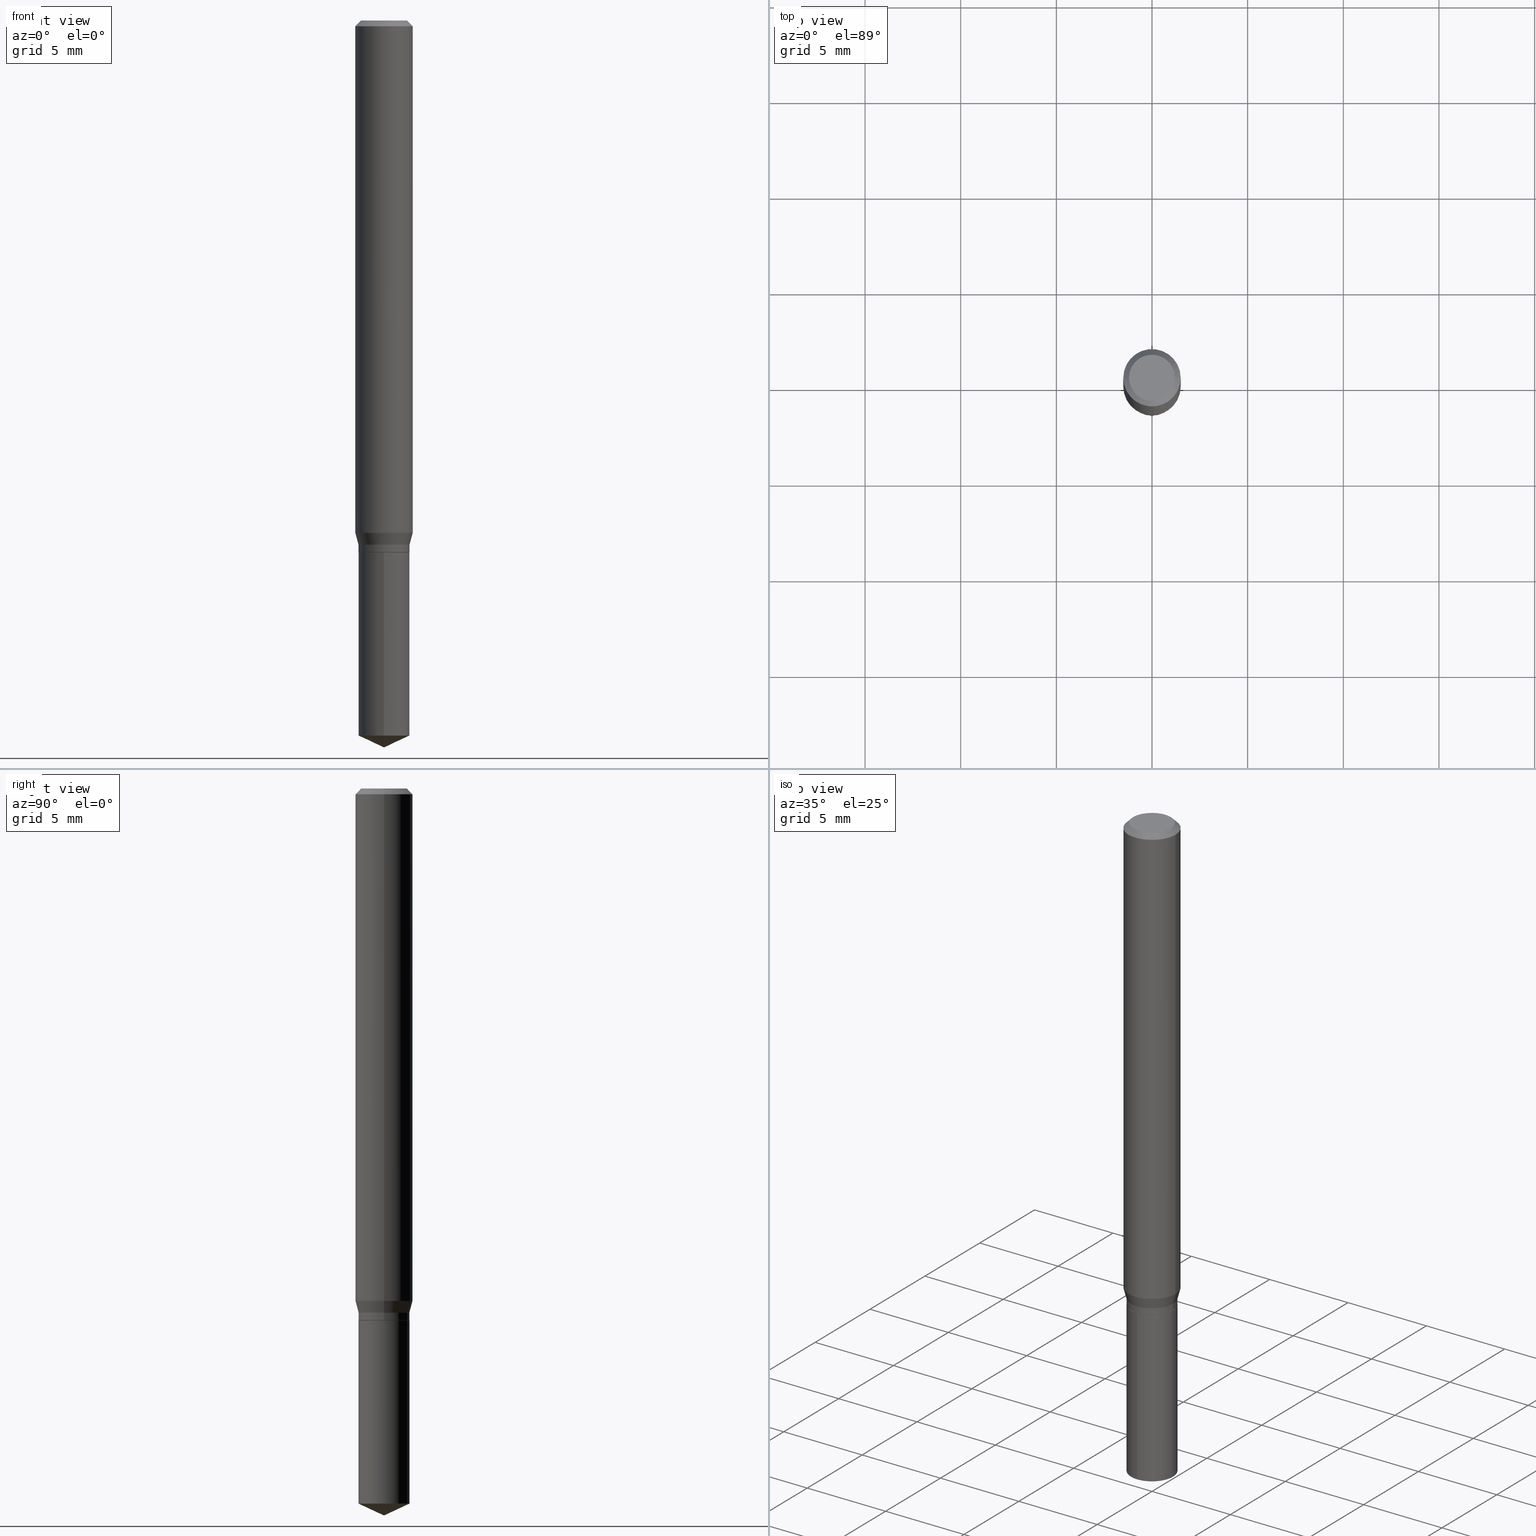
[diagram: canonical four-view strip — front | top / right | iso, engineering-drawing reading convention]
A machine part, canonical four-view strip (front | top / right | iso — engineering-drawing reading convention). The complete STEP part file that produces these views, byte-faithful:
ISO-10303-21;
HEADER;
FILE_DESCRIPTION (( 'STEP AP203' ),
    '1' );
FILE_NAME ('07681.STEP',
    '2024-04-24T00:56:24',
    ( '' ),
    ( '' ),
    'SwSTEP 2.0',
    'SolidWorks 2023',
    '' );
FILE_SCHEMA (( 'CONFIG_CONTROL_DESIGN' ));
ENDSEC;

DATA;
#1 = ORIENTED_EDGE ( 'NONE', *, *, #370, .F. ) ;
#2 = ORIENTED_EDGE ( 'NONE', *, *, #201, .F. ) ;
#3 = CARTESIAN_POINT ( 'NONE',  ( -0.05204999999999999211, -3.448939604226579531E-15, -1.094499999999999806 ) ) ;
#4 = CARTESIAN_POINT ( 'NONE',  ( 3.658651059288795076E-29, -5.223626456482161457E-15, -1.496099999999999985 ) ) ;
#5 = VECTOR ( 'NONE', #38, 39.37007874015748143 ) ;
#6 = CARTESIAN_POINT ( 'NONE',  ( 4.132873053354867254E-48, -5.900647395337818946E-34, -1.690012582823346072E-19 ) ) ;
#7 = EDGE_CURVE ( 'NONE', #419, #51, #10, .T. ) ;
#8 = CARTESIAN_POINT ( 'NONE',  ( 2.578604211317355052E-29, -3.681563412833531563E-15, -1.054441669750801669 ) ) ;
#9 = DIRECTION ( 'NONE',  ( 1.000000000000000000, -6.982962677686265133E-15, 0.000000000000000000 ) ) ;
#10 = CIRCLE ( 'NONE', #274, 0.05254999999999999949 ) ;
#11 = ORIENTED_EDGE ( 'NONE', *, *, #358, .F. ) ;
#12 = CALENDAR_DATE ( 2024, 23, 4 ) ;
#13 = ORIENTED_EDGE ( 'NONE', *, *, #7, .F. ) ;
#14 = EDGE_CURVE ( 'NONE', #115, #48, #64, .T. ) ;
#15 = DIRECTION ( 'NONE',  ( -2.445458899330790108E-29, 3.491495526022433599E-15, 1.000000000000000000 ) ) ;
#16 = ORIENTED_EDGE ( 'NONE', *, *, #457, .T. ) ;
#17 = LOCAL_TIME ( 20, 56, 24.00000000000000000, #248 ) ;
#18 = ORIENTED_EDGE ( 'NONE', *, *, #93, .F. ) ;
#19 = COORDINATED_UNIVERSAL_TIME_OFFSET ( 5, 0, .BEHIND. ) ;
#20 = ORIENTED_EDGE ( 'NONE', *, *, #300, .F. ) ;
#21 = DIRECTION ( 'NONE',  ( -2.438088387897960049E-29, 3.491481338843145188E-15, 1.000000000000000000 ) ) ;
#22 = VECTOR ( 'NONE', #132, 39.37007874015748143 ) ;
#23 = CARTESIAN_POINT ( 'NONE',  ( 0.04724000000000000421, -3.852183633974369345E-16, -3.380025165621689721E-19 ) ) ;
#24 = APPROVAL_STATUS ( 'not_yet_approved' ) ;
#25 = EDGE_CURVE ( 'NONE', #238, #123, #415, .T. ) ;
#26 = CARTESIAN_POINT ( 'NONE',  ( 2.676565608369631234E-29, -3.821426325363821984E-15, -1.094499999999999806 ) ) ;
#27 = PLANE ( 'NONE',  #37 ) ;
#28 = PERSON_AND_ORGANIZATION ( #50, #137 ) ;
#29 = CARTESIAN_POINT ( 'NONE',  ( 2.676565608369631794E-29, -3.821426325363822773E-15, -1.094499999999999806 ) ) ;
#30 = DIRECTION ( 'NONE',  ( -6.982962677686265922E-15, -1.000000000000000000, 2.599284484932695853E-15 ) ) ;
#31 = AXIS2_PLACEMENT_3D ( 'NONE', #29, #363, #30 ) ;
#32 = CC_DESIGN_DATE_AND_TIME_ASSIGNMENT ( #295, #257, ( #39 ) ) ;
#33 = CARTESIAN_POINT ( 'NONE',  ( -0.05905000000000006771, 4.195754854663396409E-16, -2.904631170795525045E-30 ) ) ;
#34 = DIRECTION ( 'NONE',  ( -6.982962677686267499E-15, -1.000000000000000000, 3.520397390770462942E-15 ) ) ;
#35 = ORIENTED_EDGE ( 'NONE', *, *, #234, .F. ) ;
#36 = DIRECTION ( 'NONE',  ( -2.445468806185136597E-29, 3.491481338843145583E-15, 1.000000000000000000 ) ) ;
#37 = AXIS2_PLACEMENT_3D ( 'NONE', #445, #21, #403 ) ;
#38 = DIRECTION ( 'NONE',  ( -2.445468806185136877E-29, 3.491481338843145188E-15, 1.000000000000000000 ) ) ;
#39 = SECURITY_CLASSIFICATION ( '', '', #241 ) ;
#40 = DIRECTION ( 'NONE',  ( -1.000000000000000000, 6.982962677686266711E-15, 0.000000000000000000 ) ) ;
#41 = AXIS2_PLACEMENT_3D ( 'NONE', #332, #372, #54 ) ;
#42 = CIRCLE ( 'NONE', #390, 0.05254999999999999949 ) ;
#43 = ORIENTED_EDGE ( 'NONE', *, *, #325, .T. ) ;
#44 = PRODUCT_DEFINITION_SHAPE ( 'NONE', 'NONE',  #61 ) ;
#45 = ORIENTED_EDGE ( 'NONE', *, *, #150, .T. ) ;
#46 = ORIENTED_EDGE ( 'NONE', *, *, #25, .T. ) ;
#47 = EDGE_CURVE ( 'NONE', #320, #124, #62, .T. ) ;
#48 = VERTEX_POINT ( 'NONE', #328 ) ;
#49 = LOCAL_TIME ( 20, 56, 24.00000000000000000, #134 ) ;
#50 = PERSON ( 'UNSPECIFIED', 'UNSPECIFIED', 'UNSPECIFIED', ('UNSPECIFIED'), ('UNSPECIFIED'), ('UNSPECIFIED') ) ;
#51 = VERTEX_POINT ( 'NONE', #210 ) ;
#52 = LINE ( 'NONE', #73, #387 ) ;
#53 = CALENDAR_DATE ( 2024, 23, 4 ) ;
#54 = DIRECTION ( 'NONE',  ( 1.000000000000000000, -6.982962677686265922E-15, 0.000000000000000000 ) ) ;
#55 = PERSON_AND_ORGANIZATION ( #50, #137 ) ;
#56 = ORIENTED_EDGE ( 'NONE', *, *, #228, .F. ) ;
#57 = AXIS2_PLACEMENT_3D ( 'NONE', #262, #343, #460 ) ;
#58 = DIRECTION ( 'NONE',  ( -2.445468806185136597E-29, 3.491481338843145583E-15, 1.000000000000000000 ) ) ;
#59 = ORIENTED_EDGE ( 'NONE', *, *, #474, .T. ) ;
#60 = CONICAL_SURFACE ( 'NONE', #279, 0.05204999999999999211, 0.7853981633975507526 ) ;
#61 = PRODUCT_DEFINITION ( 'UNKNOWN', '', #443, #305 ) ;
#62 = LINE ( 'NONE', #249, #426 ) ;
#63 = CARTESIAN_POINT ( 'NONE',  ( 0.000000000000000000, 0.000000000000000000, 0.000000000000000000 ) ) ;
#64 = CIRCLE ( 'NONE', #41, 0.05254999999999999949 ) ;
#65 = VECTOR ( 'NONE', #70, 39.37007874015748143 ) ;
#66 = ADVANCED_FACE ( 'NONE', ( #409 ), #413, .T. ) ;
#67 = DIRECTION ( 'NONE',  ( -2.445468806185136597E-29, 3.491481338843145583E-15, 1.000000000000000000 ) ) ;
#68 = ORIENTED_EDGE ( 'NONE', *, *, #370, .T. ) ;
#69 = CARTESIAN_POINT ( 'NONE',  ( 2.888098660104664204E-31, -4.123439461173780263E-17, -0.01181000000000007218 ) ) ;
#70 = DIRECTION ( 'NONE',  ( -2.445468806185136877E-29, 3.491481338843145188E-15, 1.000000000000000000 ) ) ;
#71 = EDGE_CURVE ( 'NONE', #123, #269, #135, .T. ) ;
#72 = DIRECTION ( 'NONE',  ( -2.445468806185136597E-29, 3.491481338843145583E-15, 1.000000000000000000 ) ) ;
#73 = CARTESIAN_POINT ( 'NONE',  ( 0.05904999999999999832, -4.463468013801466955E-16, -0.01181000000000007218 ) ) ;
#74 = CARTESIAN_POINT ( 'NONE',  ( -0.04724000000000000421, 3.504923541997677355E-16, -3.380025165670481712E-19 ) ) ;
#75 = CARTESIAN_POINT ( 'NONE',  ( -0.05254999999999999949, -3.419580544810318536E-15, -1.093999999999999861 ) ) ;
#76 = DIRECTION ( 'NONE',  ( 1.000000000000000000, -6.982962677686266711E-15, 4.876176775795935793E-29 ) ) ;
#77 =( CONVERSION_BASED_UNIT ( 'INCH', #106 ) LENGTH_UNIT ( ) NAMED_UNIT ( #448 ) );
#78 = ORIENTED_EDGE ( 'NONE', *, *, #71, .T. ) ;
#79 = CONICAL_SURFACE ( 'NONE', #315, 84.42940631927412198, 1.134464013796314896 ) ;
#80 = ORIENTED_EDGE ( 'NONE', *, *, #457, .F. ) ;
#81 = AXIS2_PLACEMENT_3D ( 'NONE', #227, #193, #307 ) ;
#82 = ORIENTED_EDGE ( 'NONE', *, *, #150, .F. ) ;
#83 = DIRECTION ( 'NONE',  ( -0.2588190451025215166, 5.211531920934551042E-15, 0.9659258262890679791 ) ) ;
#84 = EDGE_CURVE ( 'NONE', #433, #269, #125, .T. ) ;
#85 = ORIENTED_EDGE ( 'NONE', *, *, #286, .T. ) ;
#86 = VECTOR ( 'NONE', #371, 39.37007874015748143 ) ;
#87 = EDGE_LOOP ( 'NONE', ( #45, #156 ) ) ;
#88 = PERSON_AND_ORGANIZATION_ROLE ( 'design_owner' ) ;
#89 = CARTESIAN_POINT ( 'NONE',  ( 0.05904999999999999832, -4.535783407291118600E-16, -0.01181000000000007218 ) ) ;
#90 = APPROVAL_DATE_TIME ( #446, #439 ) ;
#91 = DIRECTION ( 'NONE',  ( 1.000000000000000000, -6.982962677686266711E-15, 4.876176775795935793E-29 ) ) ;
#92 = CALENDAR_DATE ( 2024, 23, 4 ) ;
#93 = EDGE_CURVE ( 'NONE', #155, #124, #450, .T. ) ;
#94 = AXIS2_PLACEMENT_3D ( 'NONE', #407, #58, #208 ) ;
#95 = CARTESIAN_POINT ( 'NONE',  ( 0.05905000000000013016, -4.093907358950906483E-15, -1.054441669750801669 ) ) ;
#96 = EDGE_LOOP ( 'NONE', ( #327, #46, #20 ) ) ;
#97 = DIRECTION ( 'NONE',  ( 6.439704144417026409E-15, 0.9063077870366517130, 0.4226182617406956665 ) ) ;
#98 = CARTESIAN_POINT ( 'NONE',  ( -9.261924752013118283E-28, 1.322368428517963298E-13, 37.87397874015748300 ) ) ;
#99 = VERTEX_POINT ( 'NONE', #23 ) ;
#100 = FACE_OUTER_BOUND ( 'NONE', #87, .T. ) ;
#101 = VECTOR ( 'NONE', #142, 39.37007874015748854 ) ;
#102 = APPROVAL_DATE_TIME ( #178, #346 ) ;
#103 = DIRECTION ( 'NONE',  ( 1.000000000000000000, -6.982962677686265133E-15, 0.000000000000000000 ) ) ;
#104 = DIRECTION ( 'NONE',  ( 1.000000000000000000, -6.982962677686266711E-15, 0.000000000000000000 ) ) ;
#105 = DIRECTION ( 'NONE',  ( 1.000000000000000000, -6.982962677686265922E-15, 0.000000000000000000 ) ) ;
#106 = LENGTH_MEASURE_WITH_UNIT ( LENGTH_MEASURE( 0.02539999999999999897 ), #230 );
#107 = ADVANCED_BREP_SHAPE_REPRESENTATION ( '07681', ( #310, #296, #355 ), #410 ) ;
#108 = PERSON_AND_ORGANIZATION ( #50, #137 ) ;
#109 = DIRECTION ( 'NONE',  ( -2.445458899330790108E-29, 3.491495526022433205E-15, 1.000000000000000000 ) ) ;
#110 = CIRCLE ( 'NONE', #459, 0.04724000000000000421 ) ;
#111 = CC_DESIGN_PERSON_AND_ORGANIZATION_ASSIGNMENT ( #401, #117, ( #39 ) ) ;
#112 = AXIS2_PLACEMENT_3D ( 'NONE', #232, #153, #308 ) ;
#113 = AXIS2_PLACEMENT_3D ( 'NONE', #344, #72, #188 ) ;
#114 = APPROVAL_STATUS ( 'not_yet_approved' ) ;
#115 = VERTEX_POINT ( 'NONE', #251 ) ;
#116 = FACE_OUTER_BOUND ( 'NONE', #482, .T. ) ;
#117 = PERSON_AND_ORGANIZATION_ROLE ( 'classification_officer' ) ;
#118 = ORIENTED_EDGE ( 'NONE', *, *, #14, .T. ) ;
#119 = PERSON_AND_ORGANIZATION_ROLE ( 'design_supplier' ) ;
#120 = AXIS2_PLACEMENT_3D ( 'NONE', #6, #254, #420 ) ;
#121 = EDGE_LOOP ( 'NONE', ( #357, #207 ) ) ;
#122 = ADVANCED_FACE ( 'NONE', ( #174 ), #335, .T. ) ;
#123 = VERTEX_POINT ( 'NONE', #276 ) ;
#124 = VERTEX_POINT ( 'NONE', #444 ) ;
#125 = CIRCLE ( 'NONE', #31, 0.05254999999999999949 ) ;
#126 = LINE ( 'NONE', #199, #397 ) ;
#127 = DIRECTION ( 'NONE',  ( 1.000000000000000000, -6.982962677686266711E-15, 4.876176775795936353E-29 ) ) ;
#128 = APPROVAL_PERSON_ORGANIZATION ( #108, #346, #424 ) ;
#129 = VERTEX_POINT ( 'NONE', #95 ) ;
#130 = CARTESIAN_POINT ( 'NONE',  ( 3.733902076419593174E-16, 0.05254999999999616922, -1.094500000000000028 ) ) ;
#131 = CIRCLE ( 'NONE', #81, 0.05254999999999999949 ) ;
#132 = DIRECTION ( 'NONE',  ( -2.445458899330790108E-29, 3.491495526022433599E-15, 1.000000000000000000 ) ) ;
#133 = AXIS2_PLACEMENT_3D ( 'NONE', #26, #247, #9 ) ;
#134 = COORDINATED_UNIVERSAL_TIME_OFFSET ( 5, 0, .BEHIND. ) ;
#135 = LINE ( 'NONE', #130, #22 ) ;
#136 = CC_DESIGN_DATE_AND_TIME_ASSIGNMENT ( #204, #359, ( #61 ) ) ;
#137 = ORGANIZATION ( 'UNSPECIFIED', 'UNSPECIFIED', '' ) ;
#138 = VERTEX_POINT ( 'NONE', #89 ) ;
#139 = ORIENTED_EDGE ( 'NONE', *, *, #185, .T. ) ;
#140 = LINE ( 'NONE', #291, #65 ) ;
#141 = MECHANICAL_CONTEXT ( 'NONE', #180, 'mechanical' ) ;
#142 = DIRECTION ( 'NONE',  ( -6.328713451373370167E-15, -0.9063077870366487154, 0.4226182617407018838 ) ) ;
#143 = CIRCLE ( 'NONE', #323, 0.04724000000000000421 ) ;
#144 = FACE_OUTER_BOUND ( 'NONE', #395, .T. ) ;
#145 = CC_DESIGN_SECURITY_CLASSIFICATION ( #39, ( #443 ) ) ;
#146 = DIRECTION ( 'NONE',  ( -2.445468806185136597E-29, 3.491481338843145583E-15, 1.000000000000000000 ) ) ;
#147 = AXIS2_PLACEMENT_3D ( 'NONE', #229, #313, #40 ) ;
#148 = DIRECTION ( 'NONE',  ( 2.445468806185136597E-29, -3.491481338843145583E-15, -1.000000000000000000 ) ) ;
#149 = CARTESIAN_POINT ( 'NONE',  ( 3.658651059288794515E-29, -5.223626456482161457E-15, -1.496099999999999985 ) ) ;
#150 = EDGE_CURVE ( 'NONE', #320, #99, #143, .T. ) ;
#151 = CYLINDRICAL_SURFACE ( 'NONE', #470, 0.05905000000000006771 ) ;
#152 = VECTOR ( 'NONE', #376, 39.37007874015748143 ) ;
#153 = DIRECTION ( 'NONE',  ( 2.445458899330789267E-29, -3.491495526022433599E-15, -1.000000000000000000 ) ) ;
#154 = DIRECTION ( 'NONE',  ( -6.982962677686265922E-15, -1.000000000000000000, 2.599284484932695853E-15 ) ) ;
#155 = VERTEX_POINT ( 'NONE', #168 ) ;
#156 = ORIENTED_EDGE ( 'NONE', *, *, #394, .T. ) ;
#157 = AXIS2_PLACEMENT_3D ( 'NONE', #261, #425, #76 ) ;
#158 = EDGE_LOOP ( 'NONE', ( #203, #177, #197, #349 ) ) ;
#159 = APPROVAL_PERSON_ORGANIZATION ( #283, #439, #172 ) ;
#160 = ORIENTED_EDGE ( 'NONE', *, *, #225, .F. ) ;
#161 = LINE ( 'NONE', #333, #86 ) ;
#162 = APPROVAL_STATUS ( 'not_yet_approved' ) ;
#163 = ORIENTED_EDGE ( 'NONE', *, *, #225, .T. ) ;
#164 = CARTESIAN_POINT ( 'NONE',  ( 0.05204999999999999211, -4.184889532737392438E-15, -1.094499999999999806 ) ) ;
#165 = VECTOR ( 'NONE', #97, 39.37007874015748143 ) ;
#166 = CIRCLE ( 'NONE', #490, 0.05905000000000013016 ) ;
#167 = ORIENTED_EDGE ( 'NONE', *, *, #47, .F. ) ;
#168 = CARTESIAN_POINT ( 'NONE',  ( -0.05905000000000013016, -3.261987927367191281E-15, -1.054441669750801669 ) ) ;
#169 = PERSON_AND_ORGANIZATION_ROLE ( 'creator' ) ;
#170 = DIRECTION ( 'NONE',  ( -2.445468806185136597E-29, 3.491481338843145583E-15, 1.000000000000000000 ) ) ;
#171 = ADVANCED_FACE ( 'NONE', ( #360 ), #326, .T. ) ;
#172 = APPROVAL_ROLE ( '' ) ;
#173 = VECTOR ( 'NONE', #285, 39.37007874015748143 ) ;
#174 = FACE_OUTER_BOUND ( 'NONE', #375, .T. ) ;
#175 = CC_DESIGN_APPROVAL ( #439, ( #61 ) ) ;
#176 = ADVANCED_FACE ( 'NONE', ( #245 ), #451, .T. ) ;
#177 = ORIENTED_EDGE ( 'NONE', *, *, #423, .T. ) ;
#178 = DATE_AND_TIME ( #412, #49 ) ;
#179 = DIRECTION ( 'NONE',  ( 1.000000000000000000, -6.982962677686266711E-15, 0.000000000000000000 ) ) ;
#180 = APPLICATION_CONTEXT ( 'configuration controlled 3d designs of mechanical parts and assemblies' ) ;
#181 = CARTESIAN_POINT ( 'NONE',  ( 8.265746106709734507E-48, -1.180129479067563789E-33, -3.380025165646692144E-19 ) ) ;
#182 = SHAPE_DEFINITION_REPRESENTATION ( #44, #107 ) ;
#183 = DIRECTION ( 'NONE',  ( 0.7071067811866199593, -2.468850131083015945E-15, 0.7071067811864750752 ) ) ;
#184 = CONICAL_SURFACE ( 'NONE', #361, 0.05254999999999999949, 0.2617993877991502405 ) ;
#185 = EDGE_CURVE ( 'NONE', #441, #217, #191, .T. ) ;
#186 = DIRECTION ( 'NONE',  ( -2.445468806185136597E-29, 3.491481338843145583E-15, 1.000000000000000000 ) ) ;
#187 = CARTESIAN_POINT ( 'NONE',  ( 0.05254999999999999949, -3.669546887124133129E-16, 2.562430895680764282E-30 ) ) ;
#188 = DIRECTION ( 'NONE',  ( 1.000000000000000000, -6.982962677686265133E-15, 0.000000000000000000 ) ) ;
#189 = FACE_OUTER_BOUND ( 'NONE', #468, .T. ) ;
#190 = CARTESIAN_POINT ( 'NONE',  ( -3.669546887123774197E-16, -0.05255000000000515509, -1.471595532563954478 ) ) ;
#191 = CIRCLE ( 'NONE', #133, 0.05204999999999999211 ) ;
#192 = ORIENTED_EDGE ( 'NONE', *, *, #25, .F. ) ;
#193 = DIRECTION ( 'NONE',  ( -2.445458899330790108E-29, 3.491495526022433205E-15, 1.000000000000000000 ) ) ;
#194 = CC_DESIGN_PERSON_AND_ORGANIZATION_ASSIGNMENT ( #55, #362, ( #61 ) ) ;
#195 = ORIENTED_EDGE ( 'NONE', *, *, #260, .T. ) ;
#196 = APPLICATION_CONTEXT ( 'configuration controlled 3d designs of mechanical parts and assemblies' ) ;
#197 = ORIENTED_EDGE ( 'NONE', *, *, #472, .T. ) ;
#198 = AXIS2_PLACEMENT_3D ( 'NONE', #386, #36, #303 ) ;
#199 = CARTESIAN_POINT ( 'NONE',  ( -3.669546887123864916E-16, -0.05255000000000382282, -1.094499999999999806 ) ) ;
#200 = ORIENTED_EDGE ( 'NONE', *, *, #338, .T. ) ;
#201 = EDGE_CURVE ( 'NONE', #129, #155, #166, .T. ) ;
#202 = LINE ( 'NONE', #461, #477 ) ;
#203 = ORIENTED_EDGE ( 'NONE', *, *, #71, .F. ) ;
#204 = DATE_AND_TIME ( #331, #364 ) ;
#205 = DIRECTION ( 'NONE',  ( 1.000000000000000000, -6.982962677686266711E-15, 4.876185090822587894E-29 ) ) ;
#206 = AXIS2_PLACEMENT_3D ( 'NONE', #458, #231, #179 ) ;
#207 = ORIENTED_EDGE ( 'NONE', *, *, #330, .F. ) ;
#208 = DIRECTION ( 'NONE',  ( 1.000000000000000000, -6.982962677686265922E-15, 0.000000000000000000 ) ) ;
#209 = CARTESIAN_POINT ( 'NONE',  ( -3.669546887123864916E-16, -0.05255000000000382282, -1.094499999999999806 ) ) ;
#210 = CARTESIAN_POINT ( 'NONE',  ( 0.05254999999999999949, -4.186635273406813942E-15, -1.093999999999999861 ) ) ;
#211 = CARTESIAN_POINT ( 'NONE',  ( 0.000000000000000000, 0.000000000000000000, 0.000000000000000000 ) ) ;
#212 = CLOSED_SHELL ( 'NONE', ( #352, #479, #284, #171, #411 ) ) ;
#213 = CIRCLE ( 'NONE', #408, 0.05204999999999999211 ) ;
#214 = DIRECTION ( 'NONE',  ( -2.445468806185136597E-29, 3.491481338843145583E-15, 1.000000000000000000 ) ) ;
#215 = DIRECTION ( 'NONE',  ( 1.000000000000000000, -6.982962677686266711E-15, 4.876176775795936353E-29 ) ) ;
#216 = LOCAL_TIME ( 20, 56, 24.00000000000000000, #280 ) ;
#217 = VERTEX_POINT ( 'NONE', #3 ) ;
#218 = CARTESIAN_POINT ( 'NONE',  ( 0.05905000000000006771, -4.123439461173745257E-16, 2.879382386107503723E-30 ) ) ;
#219 = CARTESIAN_POINT ( 'NONE',  ( 0.000000000000000000, 0.000000000000000000, 0.000000000000000000 ) ) ;
#220 = CARTESIAN_POINT ( 'NONE',  ( 2.888098660104664204E-31, -4.123439461173780263E-17, -0.01181000000000007218 ) ) ;
#221 = CARTESIAN_POINT ( 'NONE',  ( -9.261924752013118283E-28, 1.322368428517963298E-13, 37.87397874015748300 ) ) ;
#222 = DIRECTION ( 'NONE',  ( 1.000000000000000000, -6.982962677686266711E-15, 4.876185090822587894E-29 ) ) ;
#223 = FACE_OUTER_BOUND ( 'NONE', #391, .T. ) ;
#224 = DIRECTION ( 'NONE',  ( 0.7071067811865453523, -7.319954787623248157E-15, -0.7071067811865496822 ) ) ;
#225 = EDGE_CURVE ( 'NONE', #138, #124, #292, .T. ) ;
#226 = CARTESIAN_POINT ( 'NONE',  ( 2.676565608369631234E-29, -3.821426325363821984E-15, -1.094499999999999806 ) ) ;
#227 = CARTESIAN_POINT ( 'NONE',  ( 3.598737234376038977E-29, -5.138053690193917852E-15, -1.471595532563954700 ) ) ;
#228 = EDGE_CURVE ( 'NONE', #51, #419, #253, .T. ) ;
#229 = CARTESIAN_POINT ( 'NONE',  ( 2.888098660104664204E-31, -4.123439461173780263E-17, -0.01181000000000007218 ) ) ;
#230 =( LENGTH_UNIT ( ) NAMED_UNIT ( * ) SI_UNIT ( $, .METRE. ) );
#231 = DIRECTION ( 'NONE',  ( -2.445468806185136597E-29, 3.491481338843145583E-15, 1.000000000000000000 ) ) ;
#232 = CARTESIAN_POINT ( 'NONE',  ( 2.676565608369631794E-29, -3.821426325363822773E-15, -1.094499999999999806 ) ) ;
#233 = ORIENTED_EDGE ( 'NONE', *, *, #465, .F. ) ;
#234 = EDGE_CURVE ( 'NONE', #51, #48, #462, .T. ) ;
#235 = ORIENTED_EDGE ( 'NONE', *, *, #414, .T. ) ;
#236 = ORIENTED_EDGE ( 'NONE', *, *, #319, .T. ) ;
#237 = CC_DESIGN_PERSON_AND_ORGANIZATION_ASSIGNMENT ( #28, #169, ( #443 ) ) ;
#238 = VERTEX_POINT ( 'NONE', #149 ) ;
#239 = CLOSED_SHELL ( 'NONE', ( #429, #488, #388, #176, #396, #66, #382, #122, #404, #312, #452, #486 ) ) ;
#240 = EDGE_LOOP ( 'NONE', ( #456, #252, #356, #243 ) ) ;
#241 = SECURITY_CLASSIFICATION_LEVEL ( 'unclassified' ) ;
#242 = DIRECTION ( 'NONE',  ( 1.000000000000000000, -6.982962677686265133E-15, 0.000000000000000000 ) ) ;
#243 = ORIENTED_EDGE ( 'NONE', *, *, #14, .F. ) ;
#244 = CARTESIAN_POINT ( 'NONE',  ( 8.265746106709734507E-48, -1.180129479067563789E-33, -3.380025165646692144E-19 ) ) ;
#245 = FACE_OUTER_BOUND ( 'NONE', #272, .T. ) ;
#246 = DATE_AND_TIME ( #92, #216 ) ;
#247 = DIRECTION ( 'NONE',  ( -2.445468806185136597E-29, 3.491481338843145583E-15, 1.000000000000000000 ) ) ;
#248 = COORDINATED_UNIVERSAL_TIME_OFFSET ( 5, 0, .BEHIND. ) ;
#249 = CARTESIAN_POINT ( 'NONE',  ( -0.05904999999999999832, 3.711095515056362547E-16, -0.01181000000000007218 ) ) ;
#250 = DIRECTION ( 'NONE',  ( -2.445458899330790108E-29, 3.491495526022433205E-15, 1.000000000000000000 ) ) ;
#251 = CARTESIAN_POINT ( 'NONE',  ( -0.05254999999999999949, -3.419580544810318536E-15, -1.078699999999999992 ) ) ;
#252 = ORIENTED_EDGE ( 'NONE', *, *, #7, .T. ) ;
#253 = CIRCLE ( 'NONE', #198, 0.05254999999999999949 ) ;
#254 = DIRECTION ( 'NONE',  ( 2.438088387897960049E-29, -3.491481338843145188E-15, -1.000000000000000000 ) ) ;
#255 = FACE_OUTER_BOUND ( 'NONE', #476, .T. ) ;
#256 = LINE ( 'NONE', #379, #304 ) ;
#257 = DATE_TIME_ROLE ( 'classification_date' ) ;
#258 = DIRECTION ( 'NONE',  ( 1.000000000000000000, -6.982962677686265133E-15, 0.000000000000000000 ) ) ;
#259 = LINE ( 'NONE', #436, #287 ) ;
#260 = EDGE_CURVE ( 'NONE', #419, #115, #140, .T. ) ;
#261 = CARTESIAN_POINT ( 'NONE',  ( 0.000000000000000000, 0.000000000000000000, 0.000000000000000000 ) ) ;
#262 = CARTESIAN_POINT ( 'NONE',  ( 3.598737234376038977E-29, -5.138053690193917852E-15, -1.471595532563954700 ) ) ;
#263 = DIRECTION ( 'NONE',  ( -2.445468806185136597E-29, 3.491481338843145583E-15, 1.000000000000000000 ) ) ;
#264 = CONICAL_SURFACE ( 'NONE', #383, 84.42940631927412198, 1.134464013796314896 ) ;
#265 = ORIENTED_EDGE ( 'NONE', *, *, #84, .F. ) ;
#266 = PRODUCT ( '07681', '07681', '', ( #141 ) ) ;
#267 = CIRCLE ( 'NONE', #293, 0.05254999999999999949 ) ;
#268 = ORIENTED_EDGE ( 'NONE', *, *, #414, .F. ) ;
#269 = VERTEX_POINT ( 'NONE', #294 ) ;
#270 = UNCERTAINTY_MEASURE_WITH_UNIT (LENGTH_MEASURE( 1.000000000000000082E-05 ), #77, 'distance_accuracy_value', 'NONE');
#271 = FACE_OUTER_BOUND ( 'NONE', #483, .T. ) ;
#272 = EDGE_LOOP ( 'NONE', ( #59, #235, #2, #11 ) ) ;
#273 = ORIENTED_EDGE ( 'NONE', *, *, #338, .F. ) ;
#274 = AXIS2_PLACEMENT_3D ( 'NONE', #288, #170, #454 ) ;
#275 = CARTESIAN_POINT ( 'NONE',  ( 2.637927201231906442E-29, -3.766260920210100894E-15, -1.078699999999999992 ) ) ;
#276 = CARTESIAN_POINT ( 'NONE',  ( 3.733902076419686358E-16, 0.05254999999999486471, -1.471595532563955144 ) ) ;
#277 = FACE_OUTER_BOUND ( 'NONE', #121, .T. ) ;
#278 = DIRECTION ( 'NONE',  ( -2.445458899330790108E-29, 3.491495526022433205E-15, 1.000000000000000000 ) ) ;
#279 = AXIS2_PLACEMENT_3D ( 'NONE', #329, #442, #242 ) ;
#280 = COORDINATED_UNIVERSAL_TIME_OFFSET ( 5, 0, .BEHIND. ) ;
#281 = EDGE_LOOP ( 'NONE', ( #453, #195, #435, #35 ) ) ;
#282 = CARTESIAN_POINT ( 'NONE',  ( 2.676565608369631794E-29, -3.821426325363822773E-15, -1.094499999999999806 ) ) ;
#283 = PERSON_AND_ORGANIZATION ( #50, #137 ) ;
#284 = ADVANCED_FACE ( 'NONE', ( #223 ), #79, .T. ) ;
#285 = DIRECTION ( 'NONE',  ( -2.445468806185136877E-29, 3.491481338843145188E-15, 1.000000000000000000 ) ) ;
#286 = EDGE_CURVE ( 'NONE', #124, #138, #381, .T. ) ;
#287 = VECTOR ( 'NONE', #83, 39.37007874015748143 ) ;
#288 = CARTESIAN_POINT ( 'NONE',  ( 2.675342873966538993E-29, -3.819680584694400481E-15, -1.093999999999999861 ) ) ;
#289 = DIRECTION ( 'NONE',  ( 1.000000000000000000, 0.000000000000000000, 0.000000000000000000 ) ) ;
#290 = ORIENTED_EDGE ( 'NONE', *, *, #472, .F. ) ;
#291 = CARTESIAN_POINT ( 'NONE',  ( -0.05254999999999999949, 3.733902076419326440E-16, -2.584900389928952520E-30 ) ) ;
#292 = CIRCLE ( 'NONE', #206, 0.05904999999999999832 ) ;
#293 = AXIS2_PLACEMENT_3D ( 'NONE', #275, #437, #475 ) ;
#294 = CARTESIAN_POINT ( 'NONE',  ( 3.733902076419685865E-16, 0.05254999999999616922, -1.094500000000000028 ) ) ;
#295 = DATE_AND_TIME ( #12, #428 ) ;
#296 = MANIFOLD_SOLID_BREP ( 'Body-Move/Copy2[2]', #239 ) ;
#297 = PLANE ( 'NONE',  #120 ) ;
#298 = DIRECTION ( 'NONE',  ( -6.982962677686265922E-15, -1.000000000000000000, 2.599284484932695853E-15 ) ) ;
#299 = DIRECTION ( 'NONE',  ( -1.000000000000000000, 6.982962677686266711E-15, 0.000000000000000000 ) ) ;
#300 = EDGE_CURVE ( 'NONE', #405, #123, #348, .T. ) ;
#301 = DIRECTION ( 'NONE',  ( -2.445468806185136597E-29, 3.491481338843145583E-15, 1.000000000000000000 ) ) ;
#302 = CARTESIAN_POINT ( 'NONE',  ( 0.000000000000000000, 0.000000000000000000, 0.000000000000000000 ) ) ;
#303 = DIRECTION ( 'NONE',  ( 1.000000000000000000, -6.982962677686265922E-15, 0.000000000000000000 ) ) ;
#304 = VECTOR ( 'NONE', #183, 39.37007874015748143 ) ;
#305 = DESIGN_CONTEXT ( 'detailed design', #196, 'design' ) ;
#306 = COORDINATED_UNIVERSAL_TIME_OFFSET ( 5, 0, .BEHIND. ) ;
#307 = DIRECTION ( 'NONE',  ( -6.982962677686265922E-15, -1.000000000000000000, 5.198568969865391706E-15 ) ) ;
#308 = DIRECTION ( 'NONE',  ( 6.982962677686265922E-15, 1.000000000000000000, -3.491495526022433599E-15 ) ) ;
#309 = FACE_OUTER_BOUND ( 'NONE', #96, .T. ) ;
#310 = MANIFOLD_SOLID_BREP ( 'Body-Move/Copy2[1]', #212 ) ;
#311 = ORIENTED_EDGE ( 'NONE', *, *, #300, .T. ) ;
#312 = ADVANCED_FACE ( 'NONE', ( #100 ), #297, .F. ) ;
#313 = DIRECTION ( 'NONE',  ( 2.445468806185136597E-29, -3.491481338843145583E-15, -1.000000000000000000 ) ) ;
#314 = ORIENTED_EDGE ( 'NONE', *, *, #423, .F. ) ;
#315 = AXIS2_PLACEMENT_3D ( 'NONE', #221, #109, #464 ) ;
#316 = AXIS2_PLACEMENT_3D ( 'NONE', #220, #148, #299 ) ;
#317 = ORIENTED_EDGE ( 'NONE', *, *, #201, .T. ) ;
#318 = CC_DESIGN_PERSON_AND_ORGANIZATION_ASSIGNMENT ( #321, #88, ( #266 ) ) ;
#319 = EDGE_CURVE ( 'NONE', #129, #138, #427, .T. ) ;
#320 = VERTEX_POINT ( 'NONE', #74 ) ;
#321 = PERSON_AND_ORGANIZATION ( #50, #137 ) ;
#322 = ORIENTED_EDGE ( 'NONE', *, *, #84, .T. ) ;
#323 = AXIS2_PLACEMENT_3D ( 'NONE', #244, #485, #205 ) ;
#324 = APPLICATION_PROTOCOL_DEFINITION ( 'international standard', 'config_control_design', 1994, #196 ) ;
#325 = EDGE_CURVE ( 'NONE', #238, #405, #339, .T. ) ;
#326 = CYLINDRICAL_SURFACE ( 'NONE', #353, 0.05254999999999999949 ) ;
#327 = ORIENTED_EDGE ( 'NONE', *, *, #325, .F. ) ;
#328 = CARTESIAN_POINT ( 'NONE',  ( 0.05254999999999999949, -4.133215608922514355E-15, -1.078699999999999992 ) ) ;
#329 = CARTESIAN_POINT ( 'NONE',  ( 2.676565608369631234E-29, -3.821426325363821984E-15, -1.094499999999999806 ) ) ;
#330 = EDGE_CURVE ( 'NONE', #217, #441, #213, .T. ) ;
#331 = CALENDAR_DATE ( 2024, 23, 4 ) ;
#332 = CARTESIAN_POINT ( 'NONE',  ( 2.637927201231906442E-29, -3.766260920210100894E-15, -1.078699999999999992 ) ) ;
#333 = CARTESIAN_POINT ( 'NONE',  ( -0.05204999999999999211, -3.451588831400689943E-15, -1.094499999999999806 ) ) ;
#334 = AXIS2_PLACEMENT_3D ( 'NONE', #69, #146, #104 ) ;
#335 = CYLINDRICAL_SURFACE ( 'NONE', #463, 0.05905000000000006771 ) ;
#336 = CONICAL_SURFACE ( 'NONE', #147, 0.05904999999999999832, 0.7853981633974452814 ) ;
#337 = CONICAL_SURFACE ( 'NONE', #113, 0.05204999999999999211, 0.7853981633975507526 ) ;
#338 = EDGE_CURVE ( 'NONE', #441, #51, #256, .T. ) ;
#339 = LINE ( 'NONE', #4, #101 ) ;
#340 = DIRECTION ( 'NONE',  ( -2.445468806185136597E-29, 3.491481338843145583E-15, 1.000000000000000000 ) ) ;
#341 =( NAMED_UNIT ( * ) SI_UNIT ( $, .STERADIAN. ) SOLID_ANGLE_UNIT ( ) );
#342 = CYLINDRICAL_SURFACE ( 'NONE', #157, 0.05254999999999999949 ) ;
#343 = DIRECTION ( 'NONE',  ( -2.445458899330790108E-29, 3.491495526022433205E-15, 1.000000000000000000 ) ) ;
#344 = CARTESIAN_POINT ( 'NONE',  ( 2.676565608369631234E-29, -3.821426325363821984E-15, -1.094499999999999806 ) ) ;
#345 = CYLINDRICAL_SURFACE ( 'NONE', #416, 0.05254999999999999949 ) ;
#346 = APPROVAL ( #114, 'UNSPECIFIED' ) ;
#347 = DIRECTION ( 'NONE',  ( 0.000000000000000000, 0.000000000000000000, 1.000000000000000000 ) ) ;
#348 = CIRCLE ( 'NONE', #57, 0.05254999999999999949 ) ;
#349 = ORIENTED_EDGE ( 'NONE', *, *, #377, .F. ) ;
#350 = ORIENTED_EDGE ( 'NONE', *, *, #319, .F. ) ;
#351 = CIRCLE ( 'NONE', #367, 0.05905000000000013016 ) ;
#352 = ADVANCED_FACE ( 'NONE', ( #189 ), #345, .T. ) ;
#353 = AXIS2_PLACEMENT_3D ( 'NONE', #282, #278, #447 ) ;
#354 = ORIENTED_EDGE ( 'NONE', *, *, #377, .T. ) ;
#355 = AXIS2_PLACEMENT_3D ( 'NONE', #302, #347, #289 ) ;
#356 = ORIENTED_EDGE ( 'NONE', *, *, #234, .T. ) ;
#357 = ORIENTED_EDGE ( 'NONE', *, *, #185, .F. ) ;
#358 = EDGE_CURVE ( 'NONE', #48, #129, #202, .T. ) ;
#359 = DATE_TIME_ROLE ( 'creation_date' ) ;
#360 = FACE_OUTER_BOUND ( 'NONE', #158, .T. ) ;
#361 = AXIS2_PLACEMENT_3D ( 'NONE', #422, #186, #105 ) ;
#362 = PERSON_AND_ORGANIZATION_ROLE ( 'creator' ) ;
#363 = DIRECTION ( 'NONE',  ( -2.445458899330790108E-29, 3.491495526022433205E-15, 1.000000000000000000 ) ) ;
#364 = LOCAL_TIME ( 20, 56, 24.00000000000000000, #19 ) ;
#365 = APPROVAL_DATE_TIME ( #246, #369 ) ;
#366 = DIRECTION ( 'NONE',  ( -2.445468806185136597E-29, 3.491481338843145583E-15, 1.000000000000000000 ) ) ;
#367 = AXIS2_PLACEMENT_3D ( 'NONE', #8, #263, #389 ) ;
#368 = ORIENTED_EDGE ( 'NONE', *, *, #286, .F. ) ;
#369 = APPROVAL ( #24, 'UNSPECIFIED' ) ;
#370 = EDGE_CURVE ( 'NONE', #217, #419, #161, .T. ) ;
#371 = DIRECTION ( 'NONE',  ( -0.7071067811866199593, 7.493145998870616062E-15, 0.7071067811864750752 ) ) ;
#372 = DIRECTION ( 'NONE',  ( -2.445468806185136597E-29, 3.491481338843145583E-15, 1.000000000000000000 ) ) ;
#373 = CC_DESIGN_APPROVAL ( #369, ( #443 ) ) ;
#374 = DIRECTION ( 'NONE',  ( -2.445458899330790108E-29, 3.491495526022433205E-15, 1.000000000000000000 ) ) ;
#375 = EDGE_LOOP ( 'NONE', ( #18, #467, #236, #368 ) ) ;
#376 = DIRECTION ( 'NONE',  ( -2.445468806185136877E-29, 3.491481338843145188E-15, 1.000000000000000000 ) ) ;
#377 = EDGE_CURVE ( 'NONE', #269, #433, #42, .T. ) ;
#378 =( NAMED_UNIT ( * ) PLANE_ANGLE_UNIT ( ) SI_UNIT ( $, .RADIAN. ) );
#379 = CARTESIAN_POINT ( 'NONE',  ( 0.05204999999999999211, -4.184889532737392438E-15, -1.094499999999999806 ) ) ;
#380 = FACE_OUTER_BOUND ( 'NONE', #281, .T. ) ;
#381 = CIRCLE ( 'NONE', #334, 0.05904999999999999832 ) ;
#382 = ADVANCED_FACE ( 'NONE', ( #255 ), #184, .T. ) ;
#383 = AXIS2_PLACEMENT_3D ( 'NONE', #98, #374, #34 ) ;
#384 = DIRECTION ( 'NONE',  ( -2.445468806185136597E-29, 3.491481338843145583E-15, 1.000000000000000000 ) ) ;
#385 = CC_DESIGN_PERSON_AND_ORGANIZATION_ASSIGNMENT ( #487, #119, ( #443 ) ) ;
#386 = CARTESIAN_POINT ( 'NONE',  ( 2.675342873966538993E-29, -3.819680584694400481E-15, -1.093999999999999861 ) ) ;
#387 = VECTOR ( 'NONE', #224, 39.37007874015748143 ) ;
#388 = ADVANCED_FACE ( 'NONE', ( #417 ), #151, .T. ) ;
#389 = DIRECTION ( 'NONE',  ( 1.000000000000000000, -6.982962677686265133E-15, 0.000000000000000000 ) ) ;
#390 = AXIS2_PLACEMENT_3D ( 'NONE', #406, #481, #298 ) ;
#391 = EDGE_LOOP ( 'NONE', ( #192, #43, #314 ) ) ;
#392 = CC_DESIGN_APPROVAL ( #346, ( #39 ) ) ;
#393 = EDGE_LOOP ( 'NONE', ( #317, #398, #160, #350 ) ) ;
#394 = EDGE_CURVE ( 'NONE', #99, #320, #110, .T. ) ;
#395 = EDGE_LOOP ( 'NONE', ( #432, #16, #163, #167 ) ) ;
#396 = ADVANCED_FACE ( 'NONE', ( #380 ), #342, .T. ) ;
#397 = VECTOR ( 'NONE', #15, 39.37007874015748143 ) ;
#398 = ORIENTED_EDGE ( 'NONE', *, *, #93, .T. ) ;
#399 = CONICAL_SURFACE ( 'NONE', #316, 0.05904999999999999832, 0.7853981633974452814 ) ;
#400 = ORIENTED_EDGE ( 'NONE', *, *, #358, .T. ) ;
#401 = PERSON_AND_ORGANIZATION ( #50, #137 ) ;
#402 = ORIENTED_EDGE ( 'NONE', *, *, #330, .T. ) ;
#403 = DIRECTION ( 'NONE',  ( 1.000000000000000000, -6.982962677686265922E-15, 4.876176775795935793E-29 ) ) ;
#404 = ADVANCED_FACE ( 'NONE', ( #271 ), #336, .T. ) ;
#405 = VERTEX_POINT ( 'NONE', #190 ) ;
#406 = CARTESIAN_POINT ( 'NONE',  ( 2.676565608369631794E-29, -3.821426325363822773E-15, -1.094499999999999806 ) ) ;
#407 = CARTESIAN_POINT ( 'NONE',  ( 2.637927201231906442E-29, -3.766260920210100894E-15, -1.078699999999999992 ) ) ;
#408 = AXIS2_PLACEMENT_3D ( 'NONE', #226, #384, #103 ) ;
#409 = FACE_OUTER_BOUND ( 'NONE', #240, .T. ) ;
#410 =( GEOMETRIC_REPRESENTATION_CONTEXT ( 3 ) GLOBAL_UNCERTAINTY_ASSIGNED_CONTEXT ( ( #270 ) ) GLOBAL_UNIT_ASSIGNED_CONTEXT ( ( #77, #378, #341 ) ) REPRESENTATION_CONTEXT ( 'NONE', 'WORKASPACE' ) );
#411 = ADVANCED_FACE ( 'NONE', ( #431 ), #469, .F. ) ;
#412 = CALENDAR_DATE ( 2024, 23, 4 ) ;
#413 = CYLINDRICAL_SURFACE ( 'NONE', #440, 0.05254999999999999949 ) ;
#414 = EDGE_CURVE ( 'NONE', #115, #155, #259, .T. ) ;
#415 = LINE ( 'NONE', #489, #165 ) ;
#416 = AXIS2_PLACEMENT_3D ( 'NONE', #449, #250, #154 ) ;
#417 = FACE_OUTER_BOUND ( 'NONE', #393, .T. ) ;
#418 = FACE_OUTER_BOUND ( 'NONE', #471, .T. ) ;
#419 = VERTEX_POINT ( 'NONE', #75 ) ;
#420 = DIRECTION ( 'NONE',  ( -1.000000000000000000, 6.982962677686265922E-15, -4.876176775795935793E-29 ) ) ;
#421 = CARTESIAN_POINT ( 'NONE',  ( 2.578604211317355052E-29, -3.681563412833531563E-15, -1.054441669750801669 ) ) ;
#422 = CARTESIAN_POINT ( 'NONE',  ( 2.637927201231906442E-29, -3.766260920210100894E-15, -1.078699999999999992 ) ) ;
#423 = EDGE_CURVE ( 'NONE', #123, #405, #131, .T. ) ;
#424 = APPROVAL_ROLE ( '' ) ;
#425 = DIRECTION ( 'NONE',  ( -2.445468806185136597E-29, 3.491481338843145583E-15, 1.000000000000000000 ) ) ;
#426 = VECTOR ( 'NONE', #478, 39.37007874015748143 ) ;
#427 = LINE ( 'NONE', #218, #152 ) ;
#428 = LOCAL_TIME ( 20, 56, 24.00000000000000000, #306 ) ;
#429 = ADVANCED_FACE ( 'NONE', ( #116 ), #60, .T. ) ;
#430 = DIRECTION ( 'NONE',  ( 0.2588190451025215166, 1.565188264969620784E-15, 0.9659258262890679791 ) ) ;
#431 = FACE_OUTER_BOUND ( 'NONE', #473, .T. ) ;
#432 = ORIENTED_EDGE ( 'NONE', *, *, #394, .F. ) ;
#433 = VERTEX_POINT ( 'NONE', #209 ) ;
#434 = PRODUCT_RELATED_PRODUCT_CATEGORY ( 'detail', '', ( #266 ) ) ;
#435 = ORIENTED_EDGE ( 'NONE', *, *, #474, .F. ) ;
#436 = CARTESIAN_POINT ( 'NONE',  ( -0.05254999999999999949, -3.392870712568168349E-15, -1.078699999999999992 ) ) ;
#437 = DIRECTION ( 'NONE',  ( -2.445468806185136597E-29, 3.491481338843145583E-15, 1.000000000000000000 ) ) ;
#438 = ORIENTED_EDGE ( 'NONE', *, *, #47, .T. ) ;
#439 = APPROVAL ( #162, 'UNSPECIFIED' ) ;
#440 = AXIS2_PLACEMENT_3D ( 'NONE', #211, #366, #91 ) ;
#441 = VERTEX_POINT ( 'NONE', #164 ) ;
#442 = DIRECTION ( 'NONE',  ( -2.445468806185136597E-29, 3.491481338843145583E-15, 1.000000000000000000 ) ) ;
#443 = PRODUCT_DEFINITION_FORMATION_WITH_SPECIFIED_SOURCE ( 'ANY', '', #266, .NOT_KNOWN. ) ;
#444 = CARTESIAN_POINT ( 'NONE',  ( -0.05904999999999999832, -1.441823418256294167E-15, -0.01181000000000007218 ) ) ;
#445 = CARTESIAN_POINT ( 'NONE',  ( 4.682243963774227079E-29, -9.491807643018275637E-16, -1.094499999999999806 ) ) ;
#446 = DATE_AND_TIME ( #53, #17 ) ;
#447 = DIRECTION ( 'NONE',  ( -6.982962677686265922E-15, -1.000000000000000000, 2.599284484932695853E-15 ) ) ;
#448 = DIMENSIONAL_EXPONENTS ( 1.000000000000000000, 0.000000000000000000, 0.000000000000000000, 0.000000000000000000, 0.000000000000000000, 0.000000000000000000, 0.000000000000000000 ) ;
#449 = CARTESIAN_POINT ( 'NONE',  ( 2.676565608369631794E-29, -3.821426325363822773E-15, -1.094499999999999806 ) ) ;
#450 = LINE ( 'NONE', #33, #173 ) ;
#451 = CONICAL_SURFACE ( 'NONE', #94, 0.05254999999999999949, 0.2617993877991502405 ) ;
#452 = ADVANCED_FACE ( 'NONE', ( #277 ), #27, .F. ) ;
#453 = ORIENTED_EDGE ( 'NONE', *, *, #228, .T. ) ;
#454 = DIRECTION ( 'NONE',  ( 1.000000000000000000, -6.982962677686265922E-15, 0.000000000000000000 ) ) ;
#455 = APPLICATION_PROTOCOL_DEFINITION ( 'international standard', 'config_control_design', 1994, #180 ) ;
#456 = ORIENTED_EDGE ( 'NONE', *, *, #260, .F. ) ;
#457 = EDGE_CURVE ( 'NONE', #99, #138, #52, .T. ) ;
#458 = CARTESIAN_POINT ( 'NONE',  ( 2.888098660104664204E-31, -4.123439461173780263E-17, -0.01181000000000007218 ) ) ;
#459 = AXIS2_PLACEMENT_3D ( 'NONE', #181, #340, #222 ) ;
#460 = DIRECTION ( 'NONE',  ( -6.982962677686265922E-15, -1.000000000000000000, 5.198568969865391706E-15 ) ) ;
#461 = CARTESIAN_POINT ( 'NONE',  ( 0.05254999999999999949, -4.133215608922514355E-15, -1.078699999999999992 ) ) ;
#462 = LINE ( 'NONE', #187, #5 ) ;
#463 = AXIS2_PLACEMENT_3D ( 'NONE', #63, #214, #127 ) ;
#464 = DIRECTION ( 'NONE',  ( -6.982962677686267499E-15, -1.000000000000000000, 3.520397390770462942E-15 ) ) ;
#465 = EDGE_CURVE ( 'NONE', #155, #129, #351, .T. ) ;
#466 = APPROVAL_PERSON_ORGANIZATION ( #480, #369, #484 ) ;
#467 = ORIENTED_EDGE ( 'NONE', *, *, #465, .T. ) ;
#468 = EDGE_LOOP ( 'NONE', ( #311, #78, #265, #290 ) ) ;
#469 = PLANE ( 'NONE',  #112 ) ;
#470 = AXIS2_PLACEMENT_3D ( 'NONE', #219, #67, #215 ) ;
#471 = EDGE_LOOP ( 'NONE', ( #1, #402, #200, #13 ) ) ;
#472 = EDGE_CURVE ( 'NONE', #405, #433, #126, .T. ) ;
#473 = EDGE_LOOP ( 'NONE', ( #322, #354 ) ) ;
#474 = EDGE_CURVE ( 'NONE', #48, #115, #267, .T. ) ;
#475 = DIRECTION ( 'NONE',  ( 1.000000000000000000, -6.982962677686265922E-15, 0.000000000000000000 ) ) ;
#476 = EDGE_LOOP ( 'NONE', ( #268, #118, #400, #233 ) ) ;
#477 = VECTOR ( 'NONE', #430, 39.37007874015748143 ) ;
#478 = DIRECTION ( 'NONE',  ( -0.7071067811865453523, 2.468850131082234184E-15, -0.7071067811865496822 ) ) ;
#479 = ADVANCED_FACE ( 'NONE', ( #309 ), #264, .T. ) ;
#480 = PERSON_AND_ORGANIZATION ( #50, #137 ) ;
#481 = DIRECTION ( 'NONE',  ( -2.445458899330790108E-29, 3.491495526022433205E-15, 1.000000000000000000 ) ) ;
#482 = EDGE_LOOP ( 'NONE', ( #139, #68, #56, #273 ) ) ;
#483 = EDGE_LOOP ( 'NONE', ( #80, #82, #438, #85 ) ) ;
#484 = APPROVAL_ROLE ( '' ) ;
#485 = DIRECTION ( 'NONE',  ( -2.445468806185136597E-29, 3.491481338843145583E-15, 1.000000000000000000 ) ) ;
#486 = ADVANCED_FACE ( 'NONE', ( #418 ), #337, .T. ) ;
#487 = PERSON_AND_ORGANIZATION ( #50, #137 ) ;
#488 = ADVANCED_FACE ( 'NONE', ( #144 ), #399, .T. ) ;
#489 = CARTESIAN_POINT ( 'NONE',  ( 3.658672935554494692E-29, -5.223595400746700193E-15, -1.496099999999999985 ) ) ;
#490 = AXIS2_PLACEMENT_3D ( 'NONE', #421, #301, #258 ) ;
ENDSEC;
END-ISO-10303-21;
